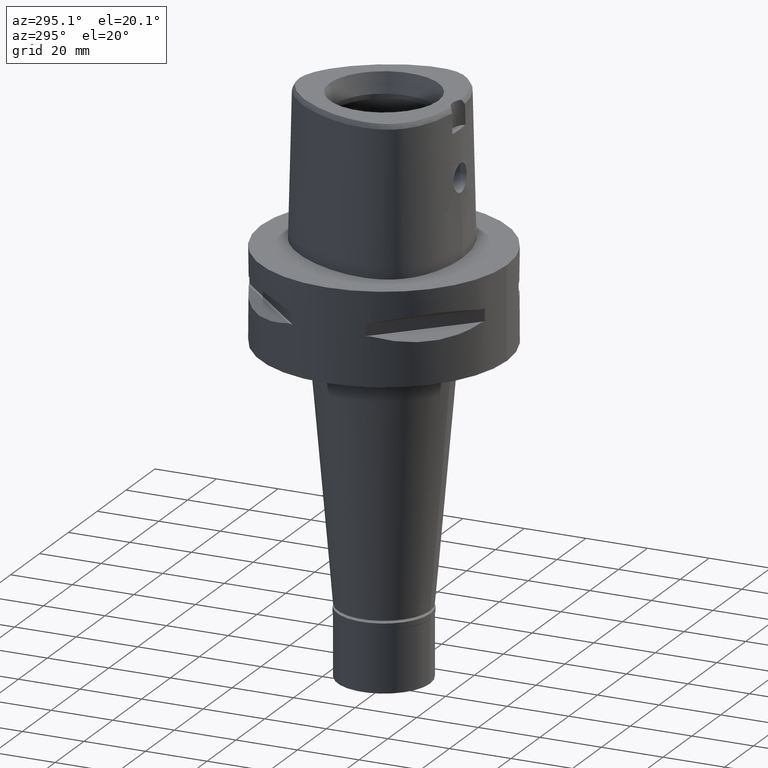
[diagram: clean part render]
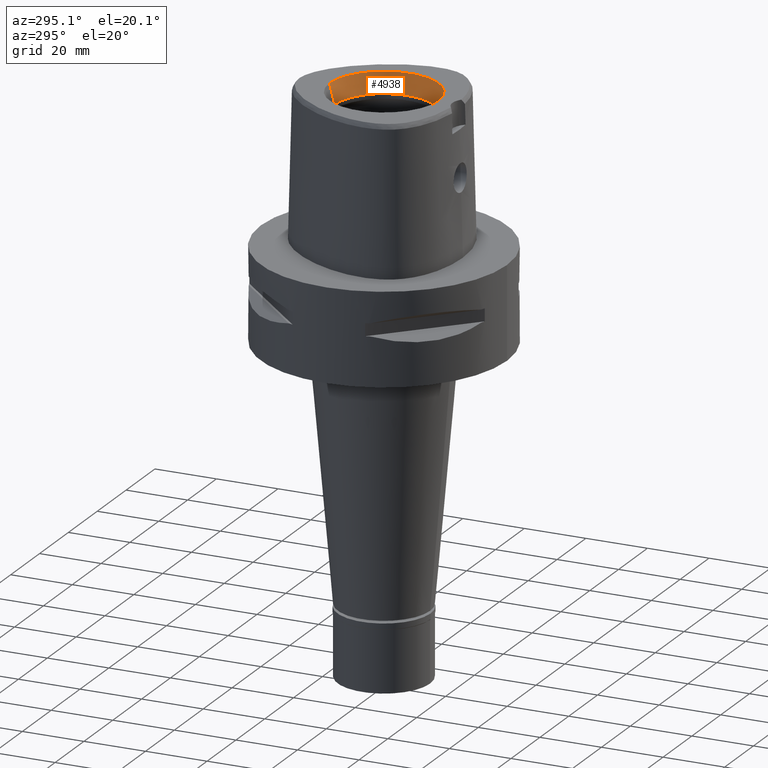
[diagram: same view with one face highlighted and labeled with its STEP entity id]
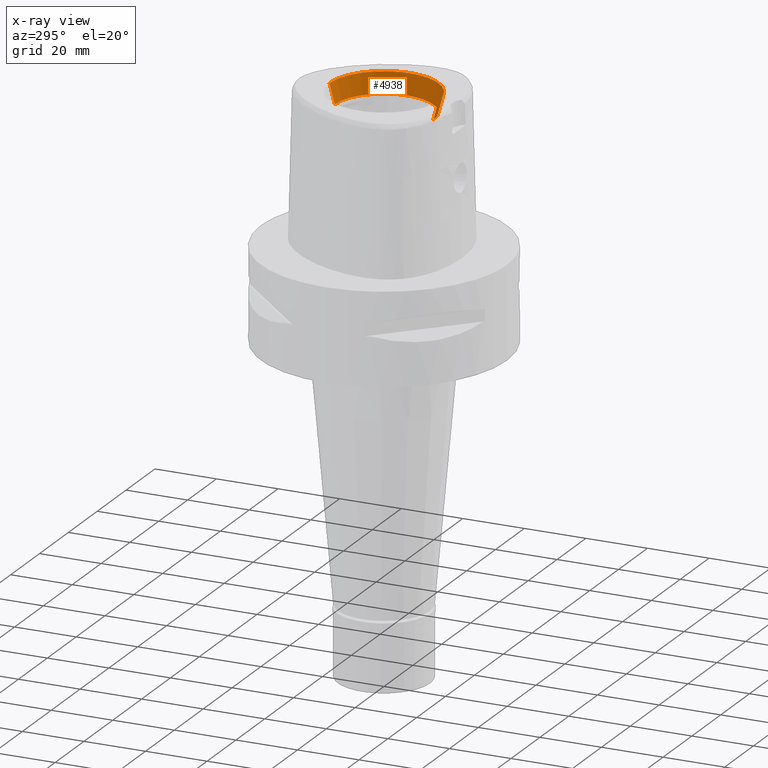
[diagram: x-ray of the same camera — body ghosted, the highlighted face saturated]
A machine part, auxiliary view. The second image highlights one B-rep face of the part: STEP entity #4938.
The next image is the same camera in x-ray: the body ghosted, the highlighted face saturated — about 0% of this face is hidden behind the body in this view.
In plain terms, the highlighted conical surface has half-angle 15 deg.
Its self-contained STEP definition (entity closure, byte-faithful):
#405 = CARTESIAN_POINT ( 'NONE',  ( 0.0000000000000000000, -17.71487483155999954, 48.00000000000000000 ) ) ;
#455 = AXIS2_PLACEMENT_3D ( 'NONE', #3159, #1187, #1285 ) ;
#597 = DIRECTION ( 'NONE',  ( 0.0000000000000000000, -1.000000000000000000, 0.0000000000000000000 ) ) ;
#725 = LINE ( 'NONE', #4041, #1522 ) ;
#902 = DIRECTION ( 'NONE',  ( 0.0000000000000000000, -1.000000000000000000, 0.0000000000000000000 ) ) ;
#1120 = ORIENTED_EDGE ( 'NONE', *, *, #3993, .F. ) ;
#1187 = DIRECTION ( 'NONE',  ( 0.0000000000000000000, 0.0000000000000000000, 1.000000000000000000 ) ) ;
#1284 = VECTOR ( 'NONE', #3343, 1000.000000000000000 ) ;
#1285 = DIRECTION ( 'NONE',  ( 0.0000000000000000000, 1.000000000000000000, 0.0000000000000000000 ) ) ;
#1321 = CARTESIAN_POINT ( 'NONE',  ( 0.0000000000000000000, 16.00000000000000000, 41.60000000000000142 ) ) ;
#1371 = ORIENTED_EDGE ( 'NONE', *, *, #3065, .T. ) ;
#1522 = VECTOR ( 'NONE', #2749, 1000.000000000000000 ) ;
#1524 = CARTESIAN_POINT ( 'NONE',  ( 0.0000000000000000000, 17.71487483155999954, 48.00000000000000000 ) ) ;
#1607 = AXIS2_PLACEMENT_3D ( 'NONE', #1689, #2934, #597 ) ;
#1689 = CARTESIAN_POINT ( 'NONE',  ( 0.0000000000000000000, 0.0000000000000000000, 48.00000000000000000 ) ) ;
#1705 = EDGE_CURVE ( 'NONE', #3220, #4201, #725, .T. ) ;
#1822 = VERTEX_POINT ( 'NONE', #1524 ) ;
#2017 = CIRCLE ( 'NONE', #3845, 16.00000000000000000 ) ;
#2070 = CARTESIAN_POINT ( 'NONE',  ( 0.0000000000000000000, 0.0000000000000000000, 41.60000000000000142 ) ) ;
#2684 = CONICAL_SURFACE ( 'NONE', #455, 16.85743741578000154, 0.2617993877991000029 ) ;
#2749 = DIRECTION ( 'NONE',  ( 0.0000000000000000000, -0.2588190451025869088, 0.9659258262890505486 ) ) ;
#2934 = DIRECTION ( 'NONE',  ( 0.0000000000000000000, 0.0000000000000000000, 1.000000000000000000 ) ) ;
#3065 = EDGE_CURVE ( 'NONE', #4201, #1822, #4429, .T. ) ;
#3159 = CARTESIAN_POINT ( 'NONE',  ( 0.0000000000000000000, 0.0000000000000000000, 44.79999999999999716 ) ) ;
#3220 = VERTEX_POINT ( 'NONE', #3690 ) ;
#3226 = FACE_OUTER_BOUND ( 'NONE', #3615, .T. ) ;
#3343 = DIRECTION ( 'NONE',  ( 0.0000000000000000000, 0.2588190451025869088, 0.9659258262890505486 ) ) ;
#3615 = EDGE_LOOP ( 'NONE', ( #1120, #4885, #5075, #1371 ) ) ;
#3690 = CARTESIAN_POINT ( 'NONE',  ( 0.0000000000000000000, -16.00000000000000000, 41.60000000000000142 ) ) ;
#3815 = EDGE_CURVE ( 'NONE', #3220, #4855, #2017, .T. ) ;
#3845 = AXIS2_PLACEMENT_3D ( 'NONE', #2070, #4468, #902 ) ;
#3993 = EDGE_CURVE ( 'NONE', #4855, #1822, #4048, .T. ) ;
#4034 = CARTESIAN_POINT ( 'NONE',  ( 0.0000000000000000000, 16.00000000000000000, 41.60000000000000142 ) ) ;
#4041 = CARTESIAN_POINT ( 'NONE',  ( 0.0000000000000000000, -16.00000000000000000, 41.60000000000000142 ) ) ;
#4048 = LINE ( 'NONE', #1321, #1284 ) ;
#4201 = VERTEX_POINT ( 'NONE', #405 ) ;
#4429 = CIRCLE ( 'NONE', #1607, 17.71487483155999954 ) ;
#4468 = DIRECTION ( 'NONE',  ( 0.0000000000000000000, 0.0000000000000000000, 1.000000000000000000 ) ) ;
#4855 = VERTEX_POINT ( 'NONE', #4034 ) ;
#4885 = ORIENTED_EDGE ( 'NONE', *, *, #3815, .F. ) ;
#4938 = ADVANCED_FACE ( 'NONE', ( #3226 ), #2684, .F. ) ;
#5075 = ORIENTED_EDGE ( 'NONE', *, *, #1705, .T. ) ;